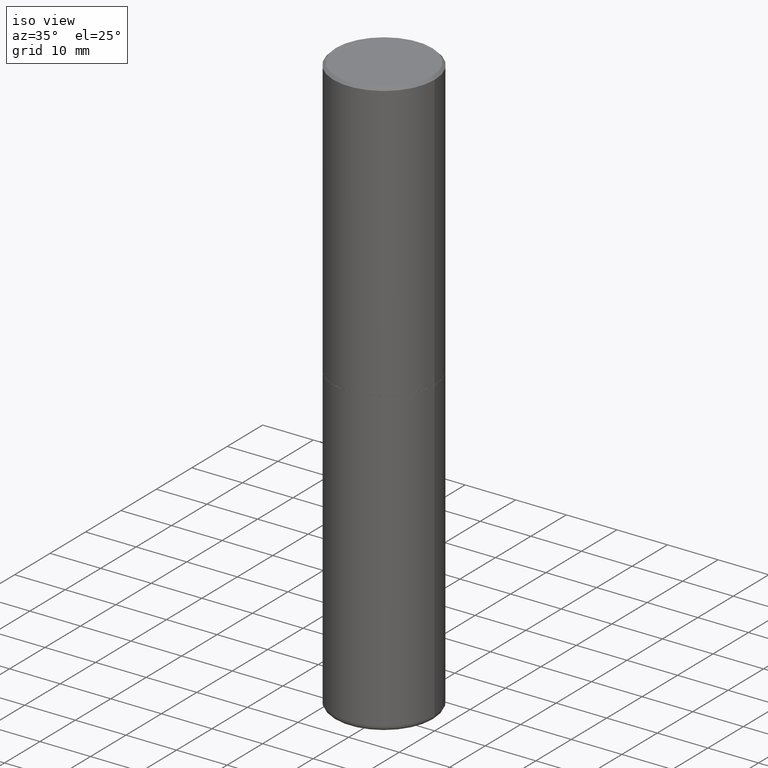
[diagram: clean part render]
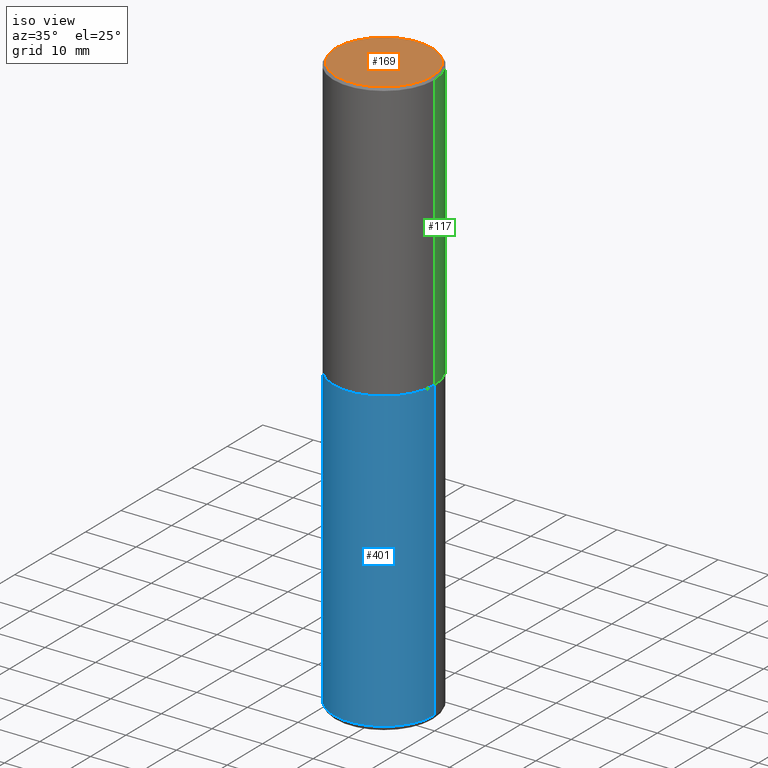
[diagram: same view with three faces highlighted in distinct colors, each labeled with its STEP entity id]
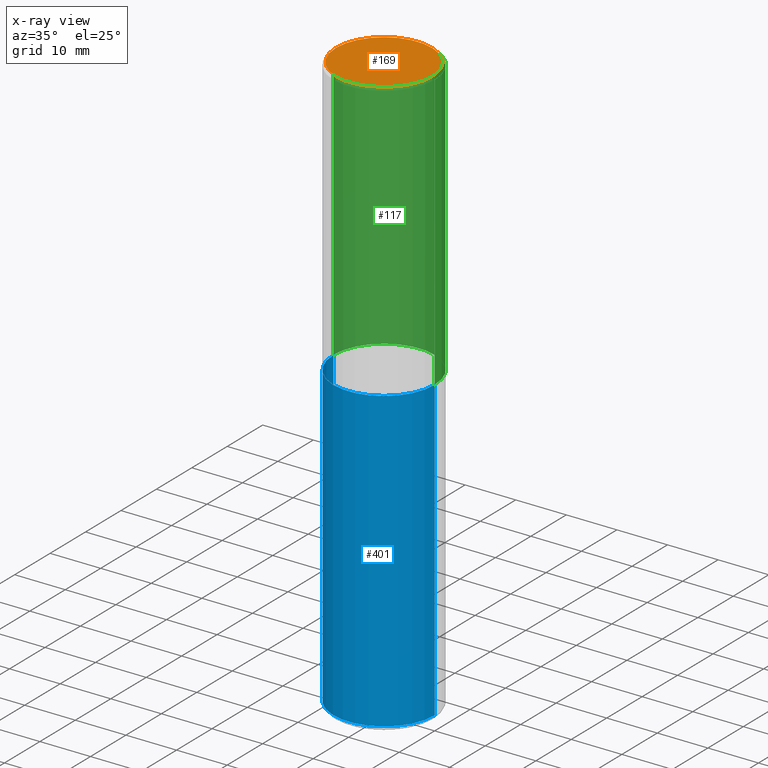
[diagram: x-ray of the same camera — body ghosted, the three highlighted faces saturated]
A machine part, iso view with three faces highlighted in distinct colors.
The next image is the same camera in x-ray (body ghosted, the three faces saturated) — at least one of them is partly hidden behind the body in this view.
Their STEP definitions:

[orange] entity #169 — the highlighted planar face has unit normal (0, -0, -1).
#3 = VERTEX_POINT ( 'NONE', #130 ) ;
#5 = CARTESIAN_POINT ( 'NONE',  ( 2.609533152651356620E-15, 0.3736999999999999211, -1.191650995338022328E-15 ) ) ;
#7 = FACE_OUTER_BOUND ( 'NONE', #301, .T. ) ;
#55 = EDGE_CURVE ( 'NONE', #63, #3, #298, .T. ) ;
#63 = VERTEX_POINT ( 'NONE', #91 ) ;
#66 = DIRECTION ( 'NONE',  ( 2.438088387897960049E-29, -3.491481338843145188E-15, -1.000000000000000000 ) ) ;
#91 = CARTESIAN_POINT ( 'NONE',  ( 0.3736999999999999211, -2.667287895133367964E-15, 2.262311619753402158E-16 ) ) ;
#94 = CIRCLE ( 'NONE', #189, 0.3736999999999999211 ) ;
#105 = DIRECTION ( 'NONE',  ( -2.445468806185136597E-29, 3.491481338843145583E-15, 1.000000000000000000 ) ) ;
#127 = AXIS2_PLACEMENT_3D ( 'NONE', #5, #66, #261 ) ;
#130 = CARTESIAN_POINT ( 'NONE',  ( -0.3736999999999999211, 2.644447966039789453E-15, 2.262311619753034352E-16 ) ) ;
#167 = DIRECTION ( 'NONE',  ( 1.000000000000000000, -6.982962677686266711E-15, 4.877734241229876808E-29 ) ) ;
#169 = ADVANCED_FACE ( 'NONE', ( #7 ), #393, .F. ) ;
#176 = ORIENTED_EDGE ( 'NONE', *, *, #55, .T. ) ;
#189 = AXIS2_PLACEMENT_3D ( 'NONE', #305, #105, #167 ) ;
#196 = AXIS2_PLACEMENT_3D ( 'NONE', #357, #285, #389 ) ;
#261 = DIRECTION ( 'NONE',  ( -1.000000000000000000, 6.982962677686265922E-15, -4.876176775795935793E-29 ) ) ;
#285 = DIRECTION ( 'NONE',  ( -2.445468806185136597E-29, 3.491481338843145583E-15, 1.000000000000000000 ) ) ;
#298 = CIRCLE ( 'NONE', #196, 0.3736999999999999211 ) ;
#301 = EDGE_LOOP ( 'NONE', ( #330, #176 ) ) ;
#305 = CARTESIAN_POINT ( 'NONE',  ( -5.532412495976664402E-45, 7.898818803016371119E-31, 2.262311619753217762E-16 ) ) ;
#323 = EDGE_CURVE ( 'NONE', #3, #63, #94, .T. ) ;
#330 = ORIENTED_EDGE ( 'NONE', *, *, #323, .T. ) ;
#357 = CARTESIAN_POINT ( 'NONE',  ( -5.532412495976664402E-45, 7.898818803016371119E-31, 2.262311619753217762E-16 ) ) ;
#389 = DIRECTION ( 'NONE',  ( 1.000000000000000000, -6.982962677686266711E-15, 4.877734241229876808E-29 ) ) ;
#393 = PLANE ( 'NONE',  #127 ) ;

[blue] entity #401 — the highlighted cylindrical surface (partial cylindrical patch) has radius 10 mm, axis along (-0, 0, 1).
#4 = CARTESIAN_POINT ( 'NONE',  ( 0.3937000000000001054, -1.841965895120088790E-14, -4.488199999999999079 ) ) ;
#9 = VECTOR ( 'NONE', #87, 39.37007874015748143 ) ;
#18 = FACE_OUTER_BOUND ( 'NONE', #75, .T. ) ;
#19 = CARTESIAN_POINT ( 'NONE',  ( 5.295418152913293224E-29, -7.560453691130945845E-15, -2.165399999999999547 ) ) ;
#42 = DIRECTION ( 'NONE',  ( -2.445468806185136597E-29, 3.491481338843145583E-15, 1.000000000000000000 ) ) ;
#51 = VECTOR ( 'NONE', #170, 39.37007874015748143 ) ;
#75 = EDGE_LOOP ( 'NONE', ( #270, #156, #302, #380 ) ) ;
#81 = EDGE_CURVE ( 'NONE', #137, #406, #253, .T. ) ;
#87 = DIRECTION ( 'NONE',  ( -2.445468806185136877E-29, 3.491481338843145188E-15, 1.000000000000000000 ) ) ;
#90 = EDGE_CURVE ( 'NONE', #233, #406, #326, .T. ) ;
#93 = CARTESIAN_POINT ( 'NONE',  ( -0.3937000000000001054, -1.287305979430828910E-14, -4.488199999999999079 ) ) ;
#115 = AXIS2_PLACEMENT_3D ( 'NONE', #19, #186, #293 ) ;
#129 = DIRECTION ( 'NONE',  ( -2.445468806185136597E-29, 3.491481338843145583E-15, 1.000000000000000000 ) ) ;
#137 = VERTEX_POINT ( 'NONE', #200 ) ;
#139 = DIRECTION ( 'NONE',  ( 1.000000000000000000, -6.982962677686265922E-15, 4.876176775795935793E-29 ) ) ;
#144 = VERTEX_POINT ( 'NONE', #93 ) ;
#149 = AXIS2_PLACEMENT_3D ( 'NONE', #376, #42, #139 ) ;
#156 = ORIENTED_EDGE ( 'NONE', *, *, #245, .T. ) ;
#170 = DIRECTION ( 'NONE',  ( -2.445468806185136877E-29, 3.491481338843145188E-15, 1.000000000000000000 ) ) ;
#181 = CARTESIAN_POINT ( 'NONE',  ( 0.3937000000000000499, -1.030964609733602906E-14, -2.165399999999999547 ) ) ;
#186 = DIRECTION ( 'NONE',  ( -2.445468806185136597E-29, 3.491481338843145583E-15, 1.000000000000000000 ) ) ;
#200 = CARTESIAN_POINT ( 'NONE',  ( -0.3937000000000000499, -8.818053367375859687E-15, -2.165399999999999547 ) ) ;
#226 = CIRCLE ( 'NONE', #347, 0.3937000000000000499 ) ;
#233 = VERTEX_POINT ( 'NONE', #4 ) ;
#245 = EDGE_CURVE ( 'NONE', #144, #233, #226, .T. ) ;
#247 = CYLINDRICAL_SURFACE ( 'NONE', #149, 0.3937000000000000499 ) ;
#253 = CIRCLE ( 'NONE', #115, 0.3937000000000000499 ) ;
#270 = ORIENTED_EDGE ( 'NONE', *, *, #314, .F. ) ;
#293 = DIRECTION ( 'NONE',  ( 1.000000000000000000, -6.982962677686265133E-15, 0.000000000000000000 ) ) ;
#295 = CARTESIAN_POINT ( 'NONE',  ( 1.097575309592012950E-28, -1.567046654499580152E-14, -4.488199999999999079 ) ) ;
#302 = ORIENTED_EDGE ( 'NONE', *, *, #90, .T. ) ;
#303 = LINE ( 'NONE', #379, #51 ) ;
#314 = EDGE_CURVE ( 'NONE', #144, #137, #303, .T. ) ;
#326 = LINE ( 'NONE', #350, #9 ) ;
#334 = DIRECTION ( 'NONE',  ( 1.000000000000000000, -6.982962677686262766E-15, 0.000000000000000000 ) ) ;
#347 = AXIS2_PLACEMENT_3D ( 'NONE', #295, #129, #334 ) ;
#350 = CARTESIAN_POINT ( 'NONE',  ( 0.3937000000000000499, -2.749192406205083217E-15, 1.919750796630860172E-29 ) ) ;
#376 = CARTESIAN_POINT ( 'NONE',  ( 0.000000000000000000, 0.000000000000000000, 0.000000000000000000 ) ) ;
#379 = CARTESIAN_POINT ( 'NONE',  ( -0.3937000000000000499, 2.797406750687514786E-15, -1.936584745033356735E-29 ) ) ;
#380 = ORIENTED_EDGE ( 'NONE', *, *, #81, .F. ) ;
#401 = ADVANCED_FACE ( 'NONE', ( #18 ), #247, .T. ) ;
#406 = VERTEX_POINT ( 'NONE', #181 ) ;

[green] entity #117 — the highlighted cylindrical surface (partial cylindrical patch) has radius 10 mm, axis along (-0, 0, 1).
#1 = CARTESIAN_POINT ( 'NONE',  ( -0.3937000000000002720, -1.015989167596965718E-15, -2.164399999999999658 ) ) ;
#8 = DIRECTION ( 'NONE',  ( 1.000000000000000000, -6.982962677686266711E-15, 4.876176775795935793E-29 ) ) ;
#22 = DIRECTION ( 'NONE',  ( -2.445468806185136877E-29, 3.491481338843145188E-15, 1.000000000000000000 ) ) ;
#29 = VECTOR ( 'NONE', #22, 39.37007874015748143 ) ;
#30 = VERTEX_POINT ( 'NONE', #152 ) ;
#33 = VERTEX_POINT ( 'NONE', #282 ) ;
#39 = CARTESIAN_POINT ( 'NONE',  ( -0.3937000000000002164, 2.797406750687515970E-15, -1.936584745033357576E-29 ) ) ;
#67 = EDGE_CURVE ( 'NONE', #30, #403, #183, .T. ) ;
#84 = CIRCLE ( 'NONE', #240, 0.3937000000000001054 ) ;
#107 = DIRECTION ( 'NONE',  ( 1.000000000000000000, -6.982962677686269077E-15, 0.000000000000000000 ) ) ;
#110 = CIRCLE ( 'NONE', #360, 0.3937000000000002720 ) ;
#117 = ADVANCED_FACE ( 'NONE', ( #192 ), #195, .T. ) ;
#122 = AXIS2_PLACEMENT_3D ( 'NONE', #158, #198, #8 ) ;
#131 = DIRECTION ( 'NONE',  ( -2.445468806185136877E-29, 3.491481338843145188E-15, 1.000000000000000000 ) ) ;
#152 = CARTESIAN_POINT ( 'NONE',  ( 0.3937000000000002720, -1.030615461599718763E-14, -2.164399999999999658 ) ) ;
#153 = EDGE_CURVE ( 'NONE', #171, #33, #265, .T. ) ;
#158 = CARTESIAN_POINT ( 'NONE',  ( 0.000000000000000000, 0.000000000000000000, 0.000000000000000000 ) ) ;
#171 = VERTEX_POINT ( 'NONE', #1 ) ;
#183 = LINE ( 'NONE', #316, #29 ) ;
#192 = FACE_OUTER_BOUND ( 'NONE', #397, .T. ) ;
#195 = CYLINDRICAL_SURFACE ( 'NONE', #122, 0.3937000000000002164 ) ;
#198 = DIRECTION ( 'NONE',  ( -2.445468806185136597E-29, 3.491481338843145583E-15, 1.000000000000000000 ) ) ;
#214 = ORIENTED_EDGE ( 'NONE', *, *, #153, .T. ) ;
#234 = VECTOR ( 'NONE', #131, 39.37007874015748143 ) ;
#240 = AXIS2_PLACEMENT_3D ( 'NONE', #296, #400, #372 ) ;
#243 = CARTESIAN_POINT ( 'NONE',  ( 0.3937000000000001054, -2.770807688499516128E-15, -0.02000000000000008715 ) ) ;
#259 = ORIENTED_EDGE ( 'NONE', *, *, #318, .T. ) ;
#262 = EDGE_CURVE ( 'NONE', #403, #33, #84, .T. ) ;
#265 = LINE ( 'NONE', #39, #234 ) ;
#274 = CARTESIAN_POINT ( 'NONE',  ( 5.292972684107107621E-29, -7.556962209792102838E-15, -2.164399999999999658 ) ) ;
#282 = CARTESIAN_POINT ( 'NONE',  ( -0.3937000000000001054, 2.679362779428220707E-15, -0.02000000000000008715 ) ) ;
#288 = ORIENTED_EDGE ( 'NONE', *, *, #67, .F. ) ;
#296 = CARTESIAN_POINT ( 'NONE',  ( 4.890937612370294178E-31, -6.982962677686321191E-17, -0.02000000000000008715 ) ) ;
#316 = CARTESIAN_POINT ( 'NONE',  ( 0.3937000000000002164, -2.749192406205084794E-15, 1.919750796630861012E-29 ) ) ;
#318 = EDGE_CURVE ( 'NONE', #30, #171, #110, .T. ) ;
#335 = ORIENTED_EDGE ( 'NONE', *, *, #262, .F. ) ;
#342 = DIRECTION ( 'NONE',  ( -2.445468806185136597E-29, 3.491481338843145583E-15, 1.000000000000000000 ) ) ;
#360 = AXIS2_PLACEMENT_3D ( 'NONE', #274, #342, #107 ) ;
#372 = DIRECTION ( 'NONE',  ( 1.000000000000000000, -6.982962677686266711E-15, 0.000000000000000000 ) ) ;
#397 = EDGE_LOOP ( 'NONE', ( #259, #214, #335, #288 ) ) ;
#400 = DIRECTION ( 'NONE',  ( -2.445468806185136597E-29, 3.491481338843145583E-15, 1.000000000000000000 ) ) ;
#403 = VERTEX_POINT ( 'NONE', #243 ) ;